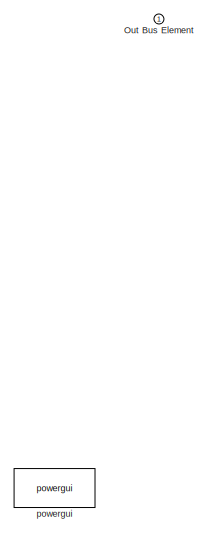
[diagram: root canvas - part 1/2, top right region]
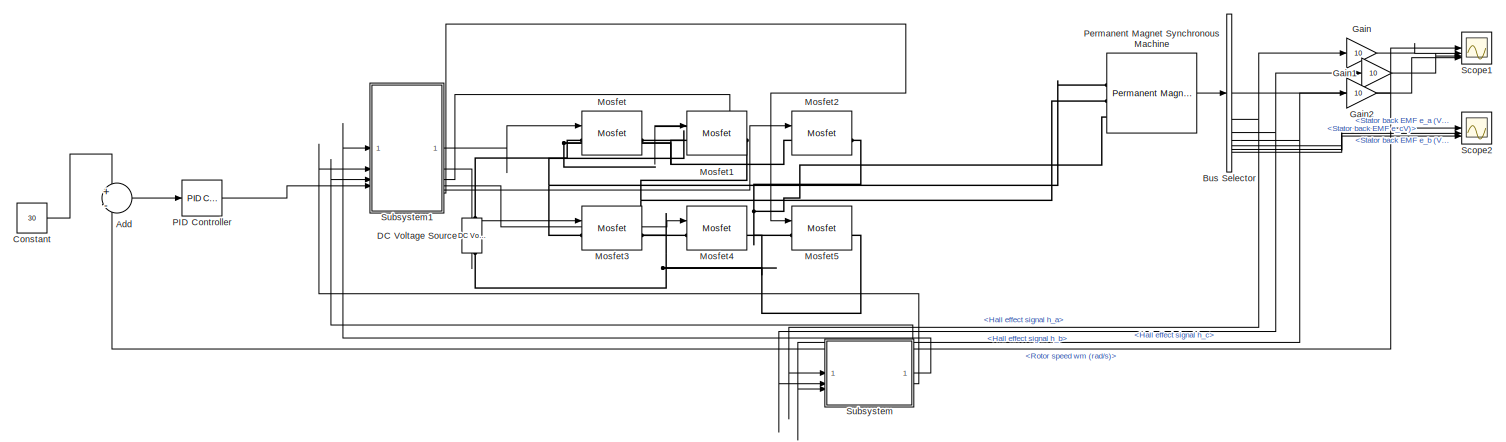
[diagram: root canvas - part 2/2, full width, bottom band]
MODEL slx_369fcffe444d
KIND model
CONFIG AbsTol = auto
CONFIG EnableMultiTasking = off
CONFIG FixedStep = auto
CONFIG MaxStep = auto
CONFIG MinStep = auto
CONFIG RelTol = 1e-3
CONFIG SampleTimeConstraint = Unconstrained
CONFIG SolverName = VariableStepAuto
CONFIG StartTime = 0.0
CONFIG StopTime = 10.0
BLOCK [Sum] Add
  Inputs = +-
BLOCK [BusSelector] Bus Selector
  OutputSignals = Rotor speed wm (rad/s),Hall effect signal h_a,Hall effect signal h_b,Hall effect signal h_c,Stator back EMF e_a (V),Stator back EMF e_b (V),Stator back EMF e_cV)
BLOCK [Constant] Constant
  Value = 30
BLOCK [Reference] DC Voltage Source  REF=spsDCVoltageSourceLib/DC Voltage Source
  LibrarySourceBlock = sps_lib/Sources/DC Voltage Source
  SourceBlock = spsDCVoltageSourceLib/DC Voltage Source
  SourceType = DC Voltage Source
BLOCK [Gain] Gain
  Gain = 10
BLOCK [Gain] Gain1
  Gain = 10
BLOCK [Gain] Gain2
  Gain = 10
BLOCK [Reference] Mosfet  REF=spsMosfetLib/Mosfet
  LibrarySourceBlock = sps_lib/Power Electronics/Mosfet
  SourceBlock = spsMosfetLib/Mosfet
  SourceType = Mosfet
BLOCK [Reference] Mosfet1  REF=spsMosfetLib/Mosfet
  LibrarySourceBlock = sps_lib/Power Electronics/Mosfet
  SourceBlock = spsMosfetLib/Mosfet
  SourceType = Mosfet
BLOCK [Reference] Mosfet2  REF=spsMosfetLib/Mosfet
  LibrarySourceBlock = sps_lib/Power Electronics/Mosfet
  SourceBlock = spsMosfetLib/Mosfet
  SourceType = Mosfet
BLOCK [Reference] Mosfet3  REF=spsMosfetLib/Mosfet
  LibrarySourceBlock = sps_lib/Power Electronics/Mosfet
  SourceBlock = spsMosfetLib/Mosfet
  SourceType = Mosfet
BLOCK [Reference] Mosfet4  REF=spsMosfetLib/Mosfet
  LibrarySourceBlock = sps_lib/Power Electronics/Mosfet
  SourceBlock = spsMosfetLib/Mosfet
  SourceType = Mosfet
BLOCK [Reference] Mosfet5  REF=spsMosfetLib/Mosfet
  LibrarySourceBlock = sps_lib/Power Electronics/Mosfet
  SourceBlock = spsMosfetLib/Mosfet
  SourceType = Mosfet
BLOCK [Outport] Out Bus Element
BLOCK [Reference] PID Controller  REF=slpidlib/PID Controller
  LibrarySourceBlock = simulink/Continuous/PID Controller
  SourceBlock = slpidlib/PID Controller
  SourceType = PID 1dof
BLOCK [Reference] Permanent Magnet Synchronous Machine  REF=spsPermanentMagnetSynchronousMachineLib/Permanent Magnet
Synchronous Machine
  LibrarySourceBlock = sps_lib/Electrical Machines/Permanent Magnet\nSynchronous Machine
  SourceBlock = spsPermanentMagnetSynchronousMachineLib/Permanent Magnet\nSynchronous Machine
  SourceType = Permanent Magnet Synchronous Machine
BLOCK [Scope] Scope1
  Floating = off
  NumInputPorts = 4
  ScopeSpecificationString = Simulink.scopes.TimeScopeBlockCfg('CurrentConfiguration', extmgr.ConfigurationSet(extmgr.Configuration('Core','General UI',true),extmgr.Configuration('Core','Source UI',true),extmgr.Configuration('Sources','WiredSimulink',true,'DataLoggingVariableName','ScopeData1'),extmgr.Configuration('Visuals','Time Domain',true,'SerializedDisplays',{struct('MinYLimReal','-5.86266','MaxYLimReal','52.76391','YLa...<+1485ch>
BLOCK [Scope] Scope2
  Floating = off
  NumInputPorts = 3
  ScopeSpecificationString = Simulink.scopes.TimeScopeBlockCfg('CurrentConfiguration', extmgr.ConfigurationSet(extmgr.Configuration('Core','General UI',true,'DisplayFullSourceName',true),extmgr.Configuration('Core','Source UI',true),extmgr.Configuration('Sources','WiredSimulink',true,'DataLoggingVariableName','ScopeData2'),extmgr.Configuration('Visuals','Time Domain',true,'SerializedDisplays',{struct('MinYLimReal','-28.00005'...<+1524ch>
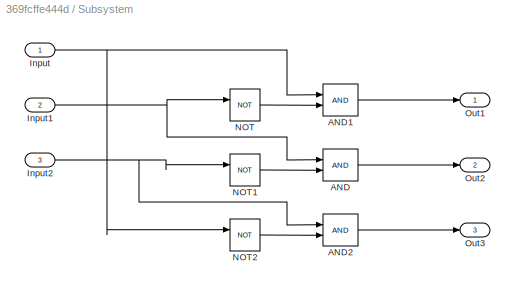
BLOCK [SubSystem] Subsystem
BLOCK [Logic] Subsystem/AND
  AllPortsSameDT = off
  IconShape = distinctive
  OutDataTypeStr = boolean
BLOCK [Logic] Subsystem/AND1
  AllPortsSameDT = off
  IconShape = distinctive
  OutDataTypeStr = boolean
BLOCK [Logic] Subsystem/AND2
  AllPortsSameDT = off
  IconShape = distinctive
  OutDataTypeStr = boolean
BLOCK [Inport] Subsystem/Input
BLOCK [Inport] Subsystem/Input1
  Port = 2
BLOCK [Inport] Subsystem/Input2
  Port = 3
BLOCK [Logic] Subsystem/NOT
  AllPortsSameDT = off
  IconShape = distinctive
  Operator = NOT
  OutDataTypeStr = boolean
BLOCK [Logic] Subsystem/NOT1
  AllPortsSameDT = off
  IconShape = distinctive
  Operator = NOT
  OutDataTypeStr = boolean
BLOCK [Logic] Subsystem/NOT2
  AllPortsSameDT = off
  IconShape = distinctive
  Operator = NOT
  OutDataTypeStr = boolean
BLOCK [Outport] Subsystem/Out1
BLOCK [Outport] Subsystem/Out2
  Port = 2
BLOCK [Outport] Subsystem/Out3
  Port = 3
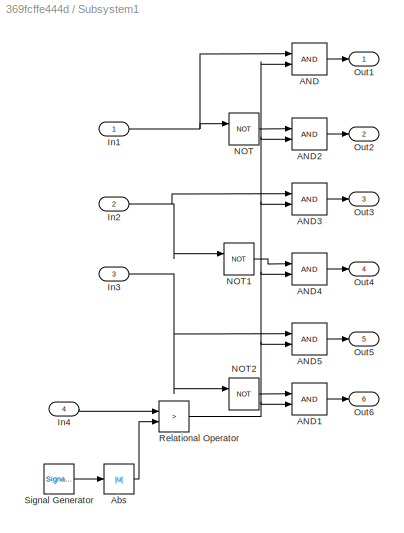
BLOCK [SubSystem] Subsystem1
BLOCK [Logic] Subsystem1/AND
  AllPortsSameDT = off
  IconShape = distinctive
  OutDataTypeStr = boolean
BLOCK [Logic] Subsystem1/AND1
  AllPortsSameDT = off
  IconShape = distinctive
  OutDataTypeStr = boolean
BLOCK [Logic] Subsystem1/AND2
  AllPortsSameDT = off
  IconShape = distinctive
  OutDataTypeStr = boolean
BLOCK [Logic] Subsystem1/AND3
  AllPortsSameDT = off
  IconShape = distinctive
  OutDataTypeStr = boolean
BLOCK [Logic] Subsystem1/AND4
  AllPortsSameDT = off
  IconShape = distinctive
  OutDataTypeStr = boolean
BLOCK [Logic] Subsystem1/AND5
  AllPortsSameDT = off
  IconShape = distinctive
  OutDataTypeStr = boolean
BLOCK [Abs] Subsystem1/Abs
  SaturateOnIntegerOverflow = off
BLOCK [Inport] Subsystem1/In1
BLOCK [Inport] Subsystem1/In2
  Port = 2
BLOCK [Inport] Subsystem1/In3
  Port = 3
BLOCK [Inport] Subsystem1/In4
  Port = 4
BLOCK [Logic] Subsystem1/NOT
  AllPortsSameDT = off
  IconShape = distinctive
  Operator = NOT
  OutDataTypeStr = boolean
BLOCK [Logic] Subsystem1/NOT1
  AllPortsSameDT = off
  IconShape = distinctive
  Operator = NOT
  OutDataTypeStr = boolean
BLOCK [Logic] Subsystem1/NOT2
  AllPortsSameDT = off
  IconShape = distinctive
  Operator = NOT
  OutDataTypeStr = boolean
BLOCK [Outport] Subsystem1/Out1
BLOCK [Outport] Subsystem1/Out2
  Port = 2
BLOCK [Outport] Subsystem1/Out3
  Port = 3
BLOCK [Outport] Subsystem1/Out4
  Port = 4
BLOCK [Outport] Subsystem1/Out5
  Port = 5
BLOCK [Outport] Subsystem1/Out6
  Port = 6
BLOCK [RelationalOperator] Subsystem1/Relational Operator
  InputSameDT = off
  Operator = >
  OutDataTypeStr = boolean
  RndMeth = Simplest
BLOCK [SignalGenerator] Subsystem1/Signal Generator
  Units = rad/sec
BLOCK [Reference] powergui  REF=spspowerguiLib/powergui
  LibrarySourceBlock = sps_lib/powergui
  Priority = 1
  SourceBlock = spspowerguiLib/powergui
  SourceType = PSB option menu block
LINE Add:1 -> PID Controller:1
NET Bus Selector:1 -> Add:2, Scope1:1
NET Bus Selector:2 -> Gain:1, Subsystem:1
NET Bus Selector:3 -> Gain1:1, Subsystem:2
NET Bus Selector:4 -> Gain2:1, Subsystem:3
LINE Bus Selector:5 -> Scope2:1
LINE Bus Selector:6 -> Scope2:2
LINE Bus Selector:7 -> Scope2:3
LINE Constant:1 -> Add:1
LINE Gain1:1 -> Scope1:3
LINE Gain2:1 -> Scope1:4
LINE Gain:1 -> Scope1:2
LINE PID Controller:1 -> Subsystem1:4
LINE Permanent Magnet Synchronous Machine:1 -> Bus Selector:1
LINE Subsystem/AND1:1 -> Subsystem/Out1:1
LINE Subsystem/AND2:1 -> Subsystem/Out3:1
LINE Subsystem/AND:1 -> Subsystem/Out2:1
NET Subsystem/Input1:1 -> Subsystem/AND:1, Subsystem/NOT:1
NET Subsystem/Input2:1 -> Subsystem/AND2:1, Subsystem/NOT1:1
NET Subsystem/Input:1 -> Subsystem/AND1:1, Subsystem/NOT2:1
LINE Subsystem/NOT1:1 -> Subsystem/AND:2
LINE Subsystem/NOT2:1 -> Subsystem/AND2:2
LINE Subsystem/NOT:1 -> Subsystem/AND1:2
LINE Subsystem1/AND1:1 -> Subsystem1/Out6:1
LINE Subsystem1/AND2:1 -> Subsystem1/Out2:1
LINE Subsystem1/AND3:1 -> Subsystem1/Out3:1
LINE Subsystem1/AND4:1 -> Subsystem1/Out4:1
LINE Subsystem1/AND5:1 -> Subsystem1/Out5:1
LINE Subsystem1/AND:1 -> Subsystem1/Out1:1
LINE Subsystem1/Abs:1 -> Subsystem1/Relational Operator:2
NET Subsystem1/In1:1 -> Subsystem1/AND:1, Subsystem1/NOT:1
NET Subsystem1/In2:1 -> Subsystem1/AND3:1, Subsystem1/NOT1:1
NET Subsystem1/In3:1 -> Subsystem1/AND5:1, Subsystem1/NOT2:1
LINE Subsystem1/In4:1 -> Subsystem1/Relational Operator:1
LINE Subsystem1/NOT1:1 -> Subsystem1/AND4:1
LINE Subsystem1/NOT2:1 -> Subsystem1/AND1:1
LINE Subsystem1/NOT:1 -> Subsystem1/AND2:1
NET Subsystem1/Relational Operator:1 -> Subsystem1/AND1:2, Subsystem1/AND2:2, Subsystem1/AND3:2, Subsystem1/AND4:2, Subsystem1/AND5:2, Subsystem1/AND:2
LINE Subsystem1/Signal Generator:1 -> Subsystem1/Abs:1
LINE Subsystem1:1 -> Mosfet:1
LINE Subsystem1:2 -> Mosfet3:1
LINE Subsystem1:3 -> Mosfet1:1
LINE Subsystem1:4 -> Mosfet4:1
LINE Subsystem1:5 -> Mosfet2:1
LINE Subsystem1:6 -> Mosfet5:1
LINE Subsystem:1 -> Subsystem1:1
LINE Subsystem:2 -> Subsystem1:2
LINE Subsystem:3 -> Subsystem1:3
PNET net1: DC Voltage Source:LConn1 -- Mosfet3:RConn1 -- Mosfet4:RConn1 -- Mosfet5:RConn1
PNET net2: DC Voltage Source:RConn1 -- Mosfet1:LConn1 -- Mosfet2:LConn1 -- Mosfet:LConn1
PNET net3: Mosfet1:RConn1 -- Mosfet4:LConn1 -- Permanent Magnet Synchronous Machine:LConn2
PNET net4: Mosfet2:RConn1 -- Mosfet5:LConn1 -- Permanent Magnet Synchronous Machine:LConn3
PNET net5: Mosfet3:LConn1 -- Mosfet:RConn1 -- Permanent Magnet Synchronous Machine:LConn1
note: NET lines group one-source signal fan-out (src -> all destinations, sorted); 1:1 wires keep LINE; PNET lines group multi-terminal physical nets as a canonical sorted terminal list (undirected conserving connections); 2-terminal nets keep the pairwise PLINE form
